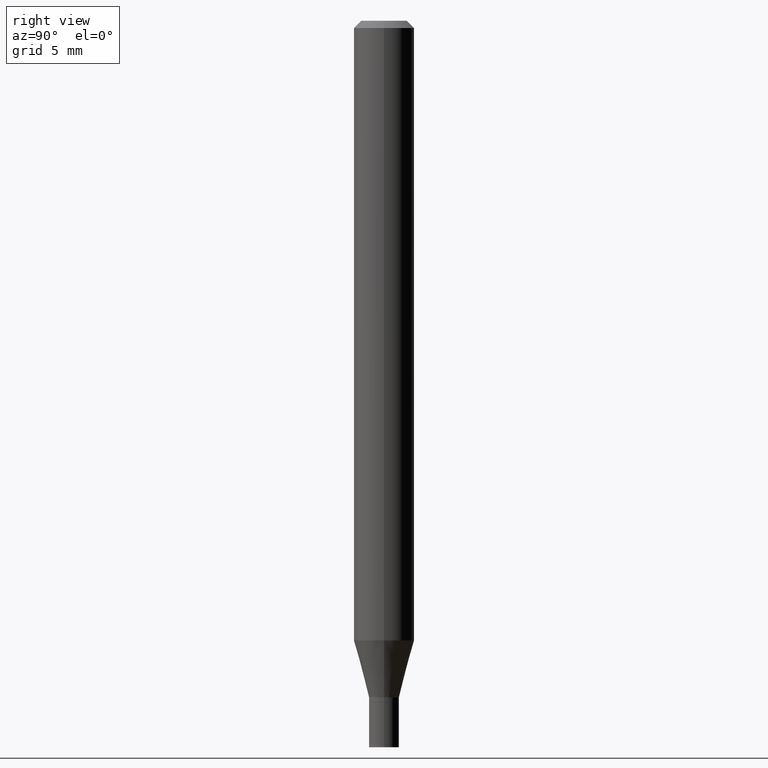
[diagram: clean part render]
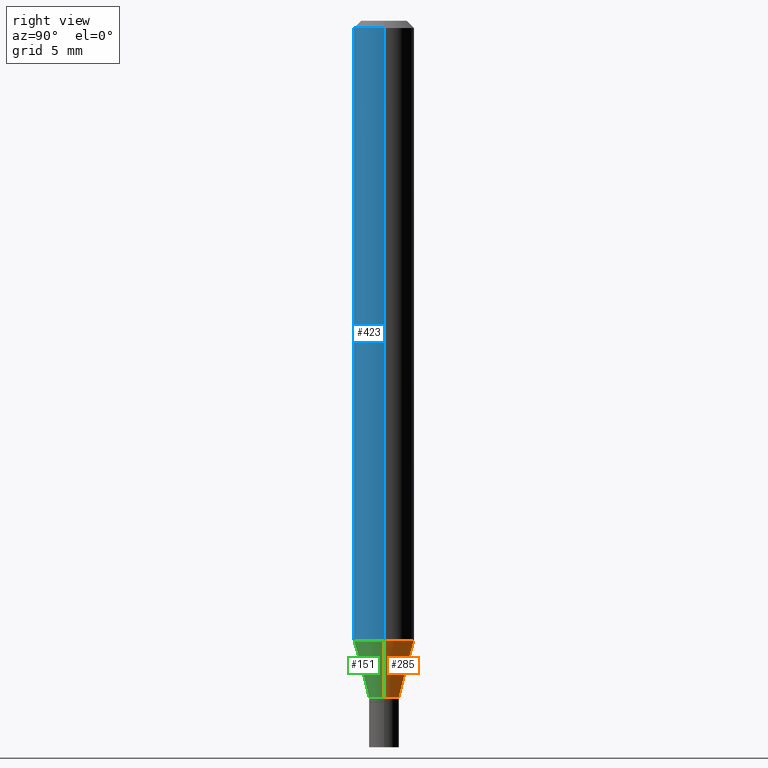
[diagram: same view with three faces highlighted in distinct colors, each labeled with its STEP entity id]
A machine part, right view with three faces highlighted in distinct colors.
Their STEP definitions:

[orange] entity #285 — the highlighted conical surface has half-angle 15 deg.
#14 = EDGE_CURVE ( 'NONE', #302, #401, #155, .T. ) ;
#16 = VECTOR ( 'NONE', #179, 39.37007874015747433 ) ;
#18 = FACE_OUTER_BOUND ( 'NONE', #344, .T. ) ;
#23 = CONICAL_SURFACE ( 'NONE', #274, 0.03099999999999991651, 0.2617993877991500740 ) ;
#27 = CARTESIAN_POINT ( 'NONE',  ( 3.416319922240636557E-29, -4.877599430363875031E-15, -1.397000000000000242 ) ) ;
#35 = DIRECTION ( 'NONE',  ( -0.2588190451025213501, 5.211531920934551042E-15, 0.9659258262890682012 ) ) ;
#65 = EDGE_CURVE ( 'NONE', #73, #401, #435, .T. ) ;
#73 = VERTEX_POINT ( 'NONE', #427 ) ;
#104 = DIRECTION ( 'NONE',  ( -2.445468806185136597E-29, 3.491481338843145583E-15, 1.000000000000000000 ) ) ;
#111 = DIRECTION ( 'NONE',  ( -2.445468806185136597E-29, 3.491481338843145583E-15, 1.000000000000000000 ) ) ;
#144 = CIRCLE ( 'NONE', #343, 0.03099999999999991651 ) ;
#155 = CIRCLE ( 'NONE', #322, 0.06250000000000000000 ) ;
#164 = EDGE_CURVE ( 'NONE', #365, #302, #216, .T. ) ;
#165 = VECTOR ( 'NONE', #35, 39.37007874015747433 ) ;
#175 = CARTESIAN_POINT ( 'NONE',  ( 0.03099999999999991651, -5.094071273372148573E-15, -1.397000000000000242 ) ) ;
#179 = DIRECTION ( 'NONE',  ( 0.2588190451025213501, 1.565188264969621968E-15, 0.9659258262890682012 ) ) ;
#216 = LINE ( 'NONE', #175, #16 ) ;
#224 = ORIENTED_EDGE ( 'NONE', *, *, #357, .T. ) ;
#227 = CARTESIAN_POINT ( 'NONE',  ( 0.03099999999999991651, -5.094071273372148573E-15, -1.397000000000000242 ) ) ;
#244 = DIRECTION ( 'NONE',  ( -2.445468806185136597E-29, 3.491481338843145583E-15, 1.000000000000000000 ) ) ;
#262 = DIRECTION ( 'NONE',  ( 1.000000000000000000, -6.982962677686257244E-15, 0.000000000000000000 ) ) ;
#274 = AXIS2_PLACEMENT_3D ( 'NONE', #356, #244, #262 ) ;
#279 = ORIENTED_EDGE ( 'NONE', *, *, #14, .F. ) ;
#285 = ADVANCED_FACE ( 'NONE', ( #18 ), #23, .T. ) ;
#302 = VERTEX_POINT ( 'NONE', #350 ) ;
#322 = AXIS2_PLACEMENT_3D ( 'NONE', #346, #111, #379 ) ;
#325 = ORIENTED_EDGE ( 'NONE', *, *, #164, .F. ) ;
#343 = AXIS2_PLACEMENT_3D ( 'NONE', #27, #104, #347 ) ;
#344 = EDGE_LOOP ( 'NONE', ( #224, #420, #279, #325 ) ) ;
#346 = CARTESIAN_POINT ( 'NONE',  ( 3.128831586500892254E-29, -4.467142279231276182E-15, -1.279440399561580399 ) ) ;
#347 = DIRECTION ( 'NONE',  ( 1.000000000000000000, -6.982962677686257244E-15, 0.000000000000000000 ) ) ;
#350 = CARTESIAN_POINT ( 'NONE',  ( 0.06250000000000000000, -4.903577446586667063E-15, -1.279440399561580399 ) ) ;
#356 = CARTESIAN_POINT ( 'NONE',  ( 3.416319922240636557E-29, -4.877599430363875031E-15, -1.397000000000000242 ) ) ;
#357 = EDGE_CURVE ( 'NONE', #365, #73, #144, .T. ) ;
#363 = CARTESIAN_POINT ( 'NONE',  ( -0.03099999999999991651, -4.657331182278244567E-15, -1.397000000000000242 ) ) ;
#365 = VERTEX_POINT ( 'NONE', #227 ) ;
#379 = DIRECTION ( 'NONE',  ( 1.000000000000000000, -6.982962677686262766E-15, 0.000000000000000000 ) ) ;
#391 = CARTESIAN_POINT ( 'NONE',  ( -0.06250000000000000000, -4.023053069381213566E-15, -1.279440399561580399 ) ) ;
#401 = VERTEX_POINT ( 'NONE', #391 ) ;
#420 = ORIENTED_EDGE ( 'NONE', *, *, #65, .T. ) ;
#427 = CARTESIAN_POINT ( 'NONE',  ( -0.03099999999999991651, -4.340192125829728277E-15, -1.397000000000000242 ) ) ;
#435 = LINE ( 'NONE', #363, #165 ) ;

[blue] entity #423 — the highlighted cylindrical surface (edge-blend (fillet) strip) has radius 1.5875 mm, axis along (-0, 0, 1).
#7 = AXIS2_PLACEMENT_3D ( 'NONE', #276, #84, #236 ) ;
#8 = CARTESIAN_POINT ( 'NONE',  ( 3.128831586500892254E-29, -4.467142279231276182E-15, -1.279440399561580399 ) ) ;
#34 = ORIENTED_EDGE ( 'NONE', *, *, #118, .T. ) ;
#64 = DIRECTION ( 'NONE',  ( -2.445468806185136597E-29, 3.491481338843145583E-15, 1.000000000000000000 ) ) ;
#84 = DIRECTION ( 'NONE',  ( -2.445468806185136597E-29, 3.491481338843145583E-15, 1.000000000000000000 ) ) ;
#85 = FACE_OUTER_BOUND ( 'NONE', #290, .T. ) ;
#87 = LINE ( 'NONE', #131, #380 ) ;
#107 = VERTEX_POINT ( 'NONE', #221 ) ;
#118 = EDGE_CURVE ( 'NONE', #302, #107, #260, .T. ) ;
#128 = DIRECTION ( 'NONE',  ( -2.445468806185136877E-29, 3.491481338843145188E-15, 1.000000000000000000 ) ) ;
#131 = CARTESIAN_POINT ( 'NONE',  ( -0.06250000000000000000, 4.440892098500626162E-16, -3.074334431409316114E-30 ) ) ;
#132 = DIRECTION ( 'NONE',  ( -2.445468806185136877E-29, 3.491481338843145188E-15, 1.000000000000000000 ) ) ;
#178 = ORIENTED_EDGE ( 'NONE', *, *, #257, .F. ) ;
#180 = CARTESIAN_POINT ( 'NONE',  ( 0.06250000000000000000, -4.364351673553916694E-16, 3.047610484872459871E-30 ) ) ;
#184 = ORIENTED_EDGE ( 'NONE', *, *, #393, .T. ) ;
#187 = DIRECTION ( 'NONE',  ( 1.000000000000000000, -6.982962677686262766E-15, 0.000000000000000000 ) ) ;
#210 = CARTESIAN_POINT ( 'NONE',  ( -0.06250000000000000000, -1.815668039806898817E-15, -0.01499999999999999944 ) ) ;
#218 = ORIENTED_EDGE ( 'NONE', *, *, #406, .F. ) ;
#221 = CARTESIAN_POINT ( 'NONE',  ( 0.06250000000000000000, -4.888073874380388472E-16, -0.01499999999999999944 ) ) ;
#236 = DIRECTION ( 'NONE',  ( 1.000000000000000000, -6.982962677686266711E-15, 4.876176775795935793E-29 ) ) ;
#257 = EDGE_CURVE ( 'NONE', #401, #369, #87, .T. ) ;
#260 = LINE ( 'NONE', #180, #281 ) ;
#265 = DIRECTION ( 'NONE',  ( -2.445468806185136597E-29, 3.491481338843145583E-15, 1.000000000000000000 ) ) ;
#267 = CIRCLE ( 'NONE', #386, 0.06250000000000000000 ) ;
#276 = CARTESIAN_POINT ( 'NONE',  ( 0.000000000000000000, 0.000000000000000000, 0.000000000000000000 ) ) ;
#281 = VECTOR ( 'NONE', #132, 39.37007874015748143 ) ;
#290 = EDGE_LOOP ( 'NONE', ( #178, #184, #34, #218 ) ) ;
#302 = VERTEX_POINT ( 'NONE', #350 ) ;
#340 = CIRCLE ( 'NONE', #410, 0.06250000000000000000 ) ;
#350 = CARTESIAN_POINT ( 'NONE',  ( 0.06250000000000000000, -4.903577446586667063E-15, -1.279440399561580399 ) ) ;
#369 = VERTEX_POINT ( 'NONE', #210 ) ;
#380 = VECTOR ( 'NONE', #128, 39.37007874015748143 ) ;
#386 = AXIS2_PLACEMENT_3D ( 'NONE', #8, #265, #187 ) ;
#391 = CARTESIAN_POINT ( 'NONE',  ( -0.06250000000000000000, -4.023053069381213566E-15, -1.279440399561580399 ) ) ;
#393 = EDGE_CURVE ( 'NONE', #401, #302, #267, .T. ) ;
#401 = VERTEX_POINT ( 'NONE', #391 ) ;
#406 = EDGE_CURVE ( 'NONE', #369, #107, #340, .T. ) ;
#410 = AXIS2_PLACEMENT_3D ( 'NONE', #436, #64, #440 ) ;
#423 = ADVANCED_FACE ( 'NONE', ( #85 ), #453, .T. ) ;
#436 = CARTESIAN_POINT ( 'NONE',  ( 3.668203209277705088E-31, -5.237222008264718399E-17, -0.01499999999999999944 ) ) ;
#440 = DIRECTION ( 'NONE',  ( 1.000000000000000000, -6.982962677686266711E-15, 0.000000000000000000 ) ) ;
#453 = CYLINDRICAL_SURFACE ( 'NONE', #7, 0.06250000000000000000 ) ;

[green] entity #151 — the highlighted conical surface has half-angle 15 deg.
#8 = CARTESIAN_POINT ( 'NONE',  ( 3.128831586500892254E-29, -4.467142279231276182E-15, -1.279440399561580399 ) ) ;
#16 = VECTOR ( 'NONE', #179, 39.37007874015747433 ) ;
#35 = DIRECTION ( 'NONE',  ( -0.2588190451025213501, 5.211531920934551042E-15, 0.9659258262890682012 ) ) ;
#48 = CIRCLE ( 'NONE', #313, 0.03099999999999991651 ) ;
#65 = EDGE_CURVE ( 'NONE', #73, #401, #435, .T. ) ;
#70 = FACE_OUTER_BOUND ( 'NONE', #332, .T. ) ;
#73 = VERTEX_POINT ( 'NONE', #427 ) ;
#80 = DIRECTION ( 'NONE',  ( -2.445468806185136597E-29, 3.491481338843145583E-15, 1.000000000000000000 ) ) ;
#108 = DIRECTION ( 'NONE',  ( -2.445468806185136597E-29, 3.491481338843145583E-15, 1.000000000000000000 ) ) ;
#143 = CONICAL_SURFACE ( 'NONE', #207, 0.03099999999999991651, 0.2617993877991500740 ) ;
#151 = ADVANCED_FACE ( 'NONE', ( #70 ), #143, .T. ) ;
#164 = EDGE_CURVE ( 'NONE', #365, #302, #216, .T. ) ;
#165 = VECTOR ( 'NONE', #35, 39.37007874015747433 ) ;
#175 = CARTESIAN_POINT ( 'NONE',  ( 0.03099999999999991651, -5.094071273372148573E-15, -1.397000000000000242 ) ) ;
#179 = DIRECTION ( 'NONE',  ( 0.2588190451025213501, 1.565188264969621968E-15, 0.9659258262890682012 ) ) ;
#182 = ORIENTED_EDGE ( 'NONE', *, *, #164, .T. ) ;
#186 = ORIENTED_EDGE ( 'NONE', *, *, #364, .T. ) ;
#187 = DIRECTION ( 'NONE',  ( 1.000000000000000000, -6.982962677686262766E-15, 0.000000000000000000 ) ) ;
#207 = AXIS2_PLACEMENT_3D ( 'NONE', #438, #108, #255 ) ;
#216 = LINE ( 'NONE', #175, #16 ) ;
#227 = CARTESIAN_POINT ( 'NONE',  ( 0.03099999999999991651, -5.094071273372148573E-15, -1.397000000000000242 ) ) ;
#255 = DIRECTION ( 'NONE',  ( 1.000000000000000000, -6.982962677686257244E-15, 0.000000000000000000 ) ) ;
#258 = ORIENTED_EDGE ( 'NONE', *, *, #65, .F. ) ;
#265 = DIRECTION ( 'NONE',  ( -2.445468806185136597E-29, 3.491481338843145583E-15, 1.000000000000000000 ) ) ;
#267 = CIRCLE ( 'NONE', #386, 0.06250000000000000000 ) ;
#302 = VERTEX_POINT ( 'NONE', #350 ) ;
#309 = DIRECTION ( 'NONE',  ( 1.000000000000000000, -6.982962677686257244E-15, 0.000000000000000000 ) ) ;
#312 = CARTESIAN_POINT ( 'NONE',  ( 3.416319922240636557E-29, -4.877599430363875031E-15, -1.397000000000000242 ) ) ;
#313 = AXIS2_PLACEMENT_3D ( 'NONE', #312, #80, #309 ) ;
#332 = EDGE_LOOP ( 'NONE', ( #258, #186, #182, #342 ) ) ;
#342 = ORIENTED_EDGE ( 'NONE', *, *, #393, .F. ) ;
#350 = CARTESIAN_POINT ( 'NONE',  ( 0.06250000000000000000, -4.903577446586667063E-15, -1.279440399561580399 ) ) ;
#363 = CARTESIAN_POINT ( 'NONE',  ( -0.03099999999999991651, -4.657331182278244567E-15, -1.397000000000000242 ) ) ;
#364 = EDGE_CURVE ( 'NONE', #73, #365, #48, .T. ) ;
#365 = VERTEX_POINT ( 'NONE', #227 ) ;
#386 = AXIS2_PLACEMENT_3D ( 'NONE', #8, #265, #187 ) ;
#391 = CARTESIAN_POINT ( 'NONE',  ( -0.06250000000000000000, -4.023053069381213566E-15, -1.279440399561580399 ) ) ;
#393 = EDGE_CURVE ( 'NONE', #401, #302, #267, .T. ) ;
#401 = VERTEX_POINT ( 'NONE', #391 ) ;
#427 = CARTESIAN_POINT ( 'NONE',  ( -0.03099999999999991651, -4.340192125829728277E-15, -1.397000000000000242 ) ) ;
#435 = LINE ( 'NONE', #363, #165 ) ;
#438 = CARTESIAN_POINT ( 'NONE',  ( 3.416319922240636557E-29, -4.877599430363875031E-15, -1.397000000000000242 ) ) ;